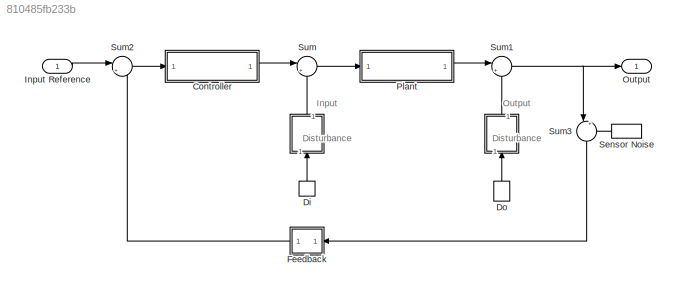
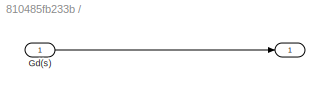
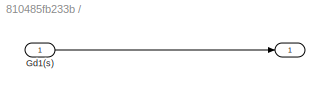
MODEL slx_810485fb233b
KIND model
CONFIG AbsTol = auto
CONFIG FixedStep = auto
CONFIG MaxStep = auto
CONFIG MinStep = auto
CONFIG RelTol = 1e-3
CONFIG SampleTimeConstraint = Unconstrained
CONFIG Solver = ode45
CONFIG SolverMode = Auto
CONFIG SolverName = ode45
CONFIG StartTime = 0.0
CONFIG StopTime = 10.0
BLOCK [SubSystem]  
  Ports = [1, 1]
  RequestExecContextInheritance = off
BLOCK [SubSystem]   
  Ports = [1, 1]
  RequestExecContextInheritance = off
BLOCK [Outport]   / 
  IconDisplay = Port number
BLOCK [Inport]   /Gd1(s)
  IconDisplay = Port number
BLOCK [Outport]  / 
  IconDisplay = Port number
BLOCK [Inport]  /Gd(s)
  IconDisplay = Port number
BLOCK [InportShadow]  Di
  IconDisplay = Port number
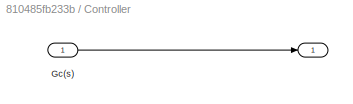
BLOCK [SubSystem] Controller
  Ports = [1, 1]
  RequestExecContextInheritance = off
BLOCK [Inport] Controller/														Gc(s)
  IconDisplay = Port number
BLOCK [Outport] Controller/ 
  IconDisplay = Port number
BLOCK [InportShadow] Do
  IconDisplay = Port number
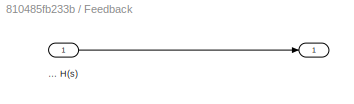
BLOCK [SubSystem] Feedback
  Ports = [1, 1]
  RequestExecContextInheritance = off
BLOCK [Outport] Feedback/ 
  IconDisplay = Port number
BLOCK [Inport] Feedback/                												 											 H(s)
  IconDisplay = Port number
BLOCK [Inport] Input Reference
  IconDisplay = Port number
BLOCK [Outport] Output
  IconDisplay = Port number
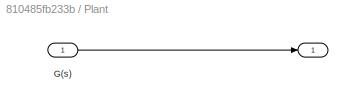
BLOCK [SubSystem] Plant
  Ports = [1, 1]
  RequestExecContextInheritance = off
BLOCK [Inport] Plant/														G(s)
  IconDisplay = Port number
BLOCK [Outport] Plant/ 
  IconDisplay = Port number
BLOCK [InportShadow] Sensor Noise
  IconDisplay = Port number
BLOCK [Sum] Sum
  IconShape = round
  InputSameDT = off
  Inputs = |++
  OutDataTypeStr = Inherit: Inherit via internal rule
  Ports = [2, 1]
  SaturateOnIntegerOverflow = off
BLOCK [Sum] Sum1
  IconShape = round
  InputSameDT = off
  Inputs = |++
  OutDataTypeStr = Inherit: Inherit via internal rule
  Ports = [2, 1]
  SaturateOnIntegerOverflow = off
BLOCK [Sum] Sum2
  IconShape = round
  InputSameDT = off
  Inputs = |+-
  OutDataTypeStr = Inherit: Inherit via internal rule
  Ports = [2, 1]
  SaturateOnIntegerOverflow = off
BLOCK [Sum] Sum3
  IconShape = round
  InputSameDT = off
  Inputs = |++
  OutDataTypeStr = Inherit: Inherit via internal rule
  Ports = [2, 1]
  SaturateOnIntegerOverflow = off
ANNOTATION (root): Input Disturbance
ANNOTATION (root): Output Disturbance
LINE   /Gd1(s):1 ->   / :1
LINE   :1 -> Sum1:2
LINE  /Gd(s):1 ->  / :1
LINE  :1 -> Sum:2
LINE  Di:1 ->  :1
LINE Controller/														Gc(s):1 -> Controller/ :1
LINE Controller:1 -> Sum:1
LINE Do:1 ->   :1
LINE Feedback/                												 											 H(s):1 -> Feedback/ :1
LINE Feedback:1 -> Sum2:2
LINE Input Reference:1 -> Sum2:1
LINE Plant/														G(s):1 -> Plant/ :1
LINE Plant:1 -> Sum1:1
LINE Sensor Noise:1 -> Sum3:2
NET Sum1:1 -> Output:1, Sum3:1
LINE Sum2:1 -> Controller:1
LINE Sum3:1 -> Feedback:1
LINE Sum:1 -> Plant:1
note: NET lines group one-source signal fan-out (src -> all destinations, sorted); 1:1 wires keep LINE
